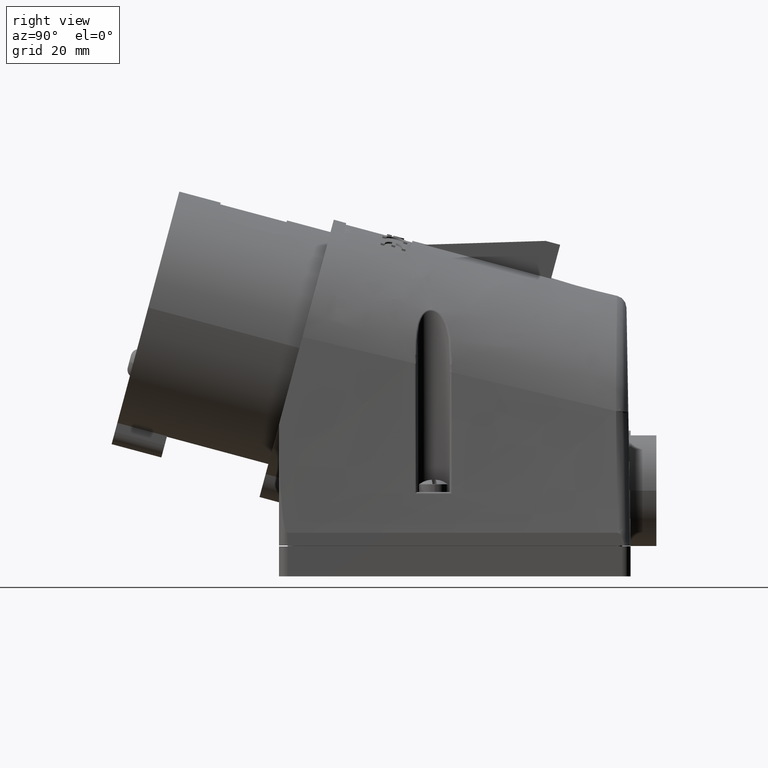
[diagram: clean part render]
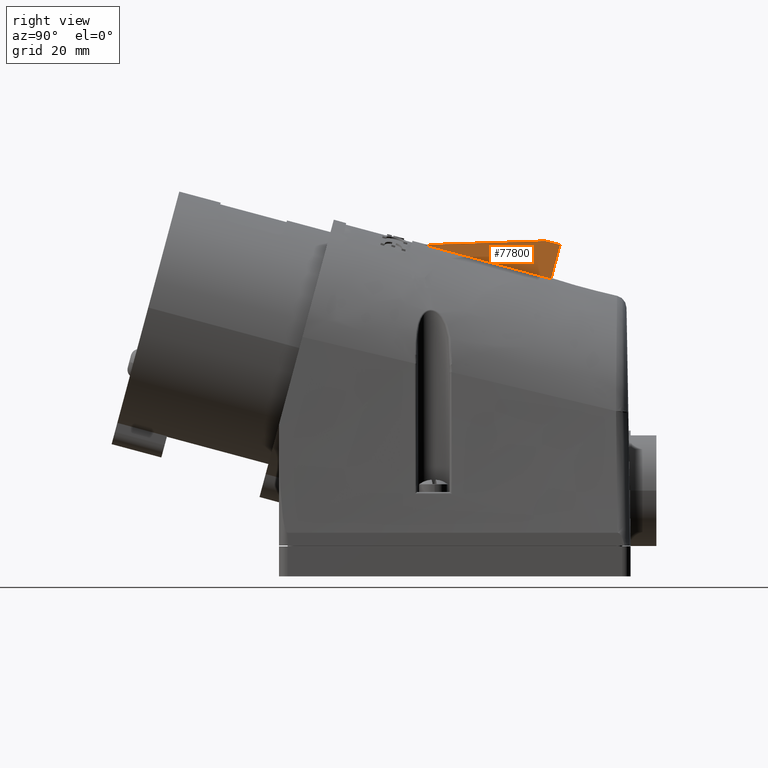
[diagram: same view with one face highlighted and labeled with its STEP entity id]
A machine part, right view. The second image highlights one B-rep face of the part: STEP entity #77800.
In plain terms, the highlighted planar face has unit normal (1, -0, 0).
Its self-contained STEP definition (entity closure, byte-faithful):
#16140=CARTESIAN_POINT('',(13.1169484670929,75.1429508882732,
48.6516298899985));
#16150=CARTESIAN_POINT('',(13.1255902858311,75.1686275442325,
48.7474564746067));
#16160=CARTESIAN_POINT('',(13.1346714922423,75.1943376136099,
48.8434077597894));
#16170=CARTESIAN_POINT('',(13.144194869173,75.2200797960281,
48.9394788924718));
#16180=CARTESIAN_POINT('',(13.4138630340355,75.9173113464933,
51.5415824634482));
#16190=CARTESIAN_POINT('',(13.9777471839827,76.6134706082093,
54.1396841983319));
#16200=CARTESIAN_POINT('',(14.8948732548482,77.3071916647905,
56.7286864277732));
#16210=CARTESIAN_POINT('',(17.4307264761774,78.6475219397489,
61.7308671128408));
#16220=CARTESIAN_POINT('',(19.0518543244929,79.2927031307398,
64.1387160977066));
#16230=CARTESIAN_POINT('',(21.0058593842889,79.8830294883928,
66.3418440575144));
#16240=CARTESIAN_POINT('',(25.4377697239386,80.9190072738474,
70.2081657883436));
#16250=CARTESIAN_POINT('',(27.9028753708101,81.3617108755464,
71.8603581225782));
#16260=CARTESIAN_POINT('',(30.5424872648712,81.7130698513275,
73.1716476718887));
#16270=CARTESIAN_POINT('',(35.9358888645669,82.2292732611137,
75.0981450242508));
#16280=CARTESIAN_POINT('',(38.685341708727,82.394976826614,
75.7165591496936));
#16290=CARTESIAN_POINT('',(41.4064453885423,82.4700686014787,
75.9968054687191));
#16300=CARTESIAN_POINT('',(46.5935546114578,82.4700686014787,
75.9968054687191));
#16310=CARTESIAN_POINT('',(49.314658291273,82.394976826614,
75.7165591496937));
#16320=CARTESIAN_POINT('',(52.0641111354331,82.2292732611136,
75.0981450242508));
#16330=CARTESIAN_POINT('',(57.4575127351288,81.7130698513275,
73.1716476718887));
#16340=CARTESIAN_POINT('',(60.0971246291899,81.3617108755464,
71.8603581225782));
#16350=CARTESIAN_POINT('',(62.5622302760614,80.9190072738473,
70.2081657883436));
#16360=CARTESIAN_POINT('',(66.9941406157111,79.8830294883928,
66.3418440575144));
#16370=CARTESIAN_POINT('',(68.9481456755071,79.2927031307398,
64.1387160977066));
#16380=CARTESIAN_POINT('',(70.5692735238226,78.6475219397489,
61.7308671128408));
#16390=CARTESIAN_POINT('',(73.1051267451518,77.3071916647905,
56.7286864277732));
#16400=CARTESIAN_POINT('',(74.0222528160173,76.6134706082094,
54.139684198332));
#16410=CARTESIAN_POINT('',(74.5861369659645,75.9173113464933,
51.5415824634482));
#16420=CARTESIAN_POINT('',(74.855805130827,75.2200797960281,
48.9394788924718));
#16430=CARTESIAN_POINT('',(74.8653285077577,75.1943376136099,
48.8434077597894));
#16440=CARTESIAN_POINT('',(74.8744097141689,75.1686275442325,
48.7474564746067));
#16450=CARTESIAN_POINT('',(74.883051532907,75.1429508882733,
48.6516298899985));
#16460=CARTESIAN_POINT('',(13.2117672415879,99.9920957734321,
42.7809359734625));
#16470=CARTESIAN_POINT('',(13.2230932529138,100.009213544072,
42.8802714185382));
#16480=CARTESIAN_POINT('',(13.2348664826904,100.026353590323,
42.9796706405484));
#16490=CARTESIAN_POINT('',(13.247088786149,100.043515045269,
43.0791295990613));
#16500=CARTESIAN_POINT('',(13.5898815520379,100.508336078912,
45.7709763548851));
#16510=CARTESIAN_POINT('',(14.2258349758504,100.97244225339,
48.4010711526822));
#16520=CARTESIAN_POINT('',(15.1956289319528,101.434922957777,
50.9880419161617));
#16530=CARTESIAN_POINT('',(17.7902458771859,102.328476474416,
55.9439237993924));
#16540=CARTESIAN_POINT('',(19.4120243256831,102.75859726841,
58.300952741978));
#16550=CARTESIAN_POINT('',(21.3358932423566,103.152148173512,
60.4518553116941));
#16560=CARTESIAN_POINT('',(25.6755822296065,103.842800030481,
64.2326237551146));
#16570=CARTESIAN_POINT('',(28.0757526496612,104.137935764948,
65.8489731813223));
#16580=CARTESIAN_POINT('',(30.6445893380001,104.372175082135,
67.1442207006227));
#16590=CARTESIAN_POINT('',(35.9392451195615,104.716310688659,
69.0687725899843));
#16600=CARTESIAN_POINT('',(38.6534432163255,104.826779732326,
69.6969250516432));
#16610=CARTESIAN_POINT('',(41.3669154613479,104.876840915569,
69.9929289221706));
#16620=CARTESIAN_POINT('',(46.6330845386521,104.876840915569,
69.9929289221706));
#16630=CARTESIAN_POINT('',(49.3465567836745,104.826779732326,
69.6969250516432));
#16640=CARTESIAN_POINT('',(52.0607548804385,104.716310688659,
69.0687725899843));
#16650=CARTESIAN_POINT('',(57.3554106619998,104.372175082135,
67.1442207006227));
#16660=CARTESIAN_POINT('',(59.9242473503388,104.137935764948,
65.8489731813223));
#16670=CARTESIAN_POINT('',(62.3244177703935,103.842800030481,
64.2326237551146));
#16680=CARTESIAN_POINT('',(66.6641067576434,103.152148173512,
60.451855311694));
#16690=CARTESIAN_POINT('',(68.5879756743169,102.75859726841,
58.300952741978));
#16700=CARTESIAN_POINT('',(70.2097541228141,102.328476474416,
55.9439237993924));
#16710=CARTESIAN_POINT('',(72.8043710680472,101.434922957777,
50.9880419161617));
#16720=CARTESIAN_POINT('',(73.7741650241496,100.972442253389,
48.4010711526822));
#16730=CARTESIAN_POINT('',(74.4101184479621,100.508336078912,
45.7709763548851));
#16740=CARTESIAN_POINT('',(74.752911213851,100.043515045269,
43.0791295990613));
#16750=CARTESIAN_POINT('',(74.7651335173096,100.026353590323,
42.9796706405485));
#16760=CARTESIAN_POINT('',(74.7769067470863,100.009213544072,
42.8802714185383));
#16770=CARTESIAN_POINT('',(74.7882327584121,99.9920957734321,
42.7809359734625));
#16780=CARTESIAN_POINT('',(13.3065860160829,124.841240658591,
36.9102420569265));
#16790=CARTESIAN_POINT('',(13.3205962199964,124.849799543911,
37.0130863624698));
#16800=CARTESIAN_POINT('',(13.3350614731386,124.858369567036,
37.1159335213074));
#16810=CARTESIAN_POINT('',(13.349982703125,124.866950294509,
37.2187803056508));
#16820=CARTESIAN_POINT('',(13.7659000700403,125.099360811331,
40.000370246322));
#16830=CARTESIAN_POINT('',(14.4739227677181,125.33141389857,
42.6624581070325));
#16840=CARTESIAN_POINT('',(15.4963846090574,125.562654250763,
45.2473974045502));
#16850=CARTESIAN_POINT('',(18.1497652781943,126.009431009083,
50.156980485944));
#16860=CARTESIAN_POINT('',(19.7721943268732,126.22449140608,
52.4631893862493));
#16870=CARTESIAN_POINT('',(21.6659271004244,126.421266858631,
54.5618665658737));
#16880=CARTESIAN_POINT('',(25.9133947352745,126.766592787116,
58.2570817218857));
#16890=CARTESIAN_POINT('',(28.2486299285123,126.914160654349,
59.8375882400664));
#16900=CARTESIAN_POINT('',(30.7466914111291,127.031280312942,
61.1167937293566));
#16910=CARTESIAN_POINT('',(35.942601374556,127.203348116204,
63.0394001557178));
#16920=CARTESIAN_POINT('',(38.621544723924,127.258582638038,
63.6772909535929));
#16930=CARTESIAN_POINT('',(41.3273855341536,127.283613229659,
63.989052375622));
#16940=CARTESIAN_POINT('',(46.6726144658464,127.283613229659,
63.989052375622));
#16950=CARTESIAN_POINT('',(49.378455276076,127.258582638038,
63.6772909535929));
#16960=CARTESIAN_POINT('',(52.057398625444,127.203348116204,
63.0394001557178));
#16970=CARTESIAN_POINT('',(57.2533085888709,127.031280312942,
61.1167937293566));
#16980=CARTESIAN_POINT('',(59.7513700714877,126.914160654349,
59.8375882400664));
#16990=CARTESIAN_POINT('',(62.0866052647255,126.766592787116,
58.2570817218857));
#17000=CARTESIAN_POINT('',(66.3340728995756,126.421266858631,
54.5618665658737));
#17010=CARTESIAN_POINT('',(68.2278056731268,126.22449140608,
52.4631893862493));
#17020=CARTESIAN_POINT('',(69.8502347218057,126.009431009083,
50.156980485944));
#17030=CARTESIAN_POINT('',(72.5036153909426,125.562654250763,
45.2473974045502));
#17040=CARTESIAN_POINT('',(73.5260772322819,125.33141389857,
42.6624581070325));
#17050=CARTESIAN_POINT('',(74.2340999299597,125.099360811331,
40.000370246322));
#17060=CARTESIAN_POINT('',(74.650017296875,124.866950294509,
37.2187803056508));
#17070=CARTESIAN_POINT('',(74.6649385268614,124.858369567036,
37.1159335213075));
#17080=CARTESIAN_POINT('',(74.6794037800036,124.849799543911,
37.0130863624698));
#17090=CARTESIAN_POINT('',(74.6934139839171,124.841240658591,
36.9102420569265));
#17100=CARTESIAN_POINT('',(13.527601747075,182.762806831271,
23.2260775620235));
#17110=CARTESIAN_POINT('',(13.5478686104957,182.751415571638,
23.3371007684785));
#17120=CARTESIAN_POINT('',(13.5686087761238,182.740009488388,
23.4479848196132));
#17130=CARTESIAN_POINT('',(13.5898210093699,182.728589158423,
23.5587283818508));
#17140=CARTESIAN_POINT('',(14.1761865521389,182.419267507336,
26.5495032197774));
#17150=CARTESIAN_POINT('',(15.0521975341018,182.110421569269,
29.2861646048151));
#17160=CARTESIAN_POINT('',(16.197424420839,181.802657322983,
31.8663687015573));
#17170=CARTESIAN_POINT('',(18.9877790960585,181.208029651049,
36.6680326120217));
#17180=CARTESIAN_POINT('',(20.6117246468806,180.921799759251,
38.855783655711));
#17190=CARTESIAN_POINT('',(22.4352122423334,180.659905810953,
40.8327272142362));
#17200=CARTESIAN_POINT('',(26.4677185499327,180.200301883287,
44.3285238220112));
#17210=CARTESIAN_POINT('',(28.6515944084975,180.003899685297,
45.8254831043133));
#17220=CARTESIAN_POINT('',(30.9846839864244,179.848021858999,
47.0672957775903));
#17230=CARTESIAN_POINT('',(35.9504245631066,179.619012011545,
48.9853674698816));
#17240=CARTESIAN_POINT('',(38.5471916366455,179.545498843018,
49.6459576277612));
#17250=CARTESIAN_POINT('',(41.2352441222713,179.512184929199,
49.9944487668994));
#17260=CARTESIAN_POINT('',(46.7647558777288,179.512184929199,
49.9944487668994));
#17270=CARTESIAN_POINT('',(49.4528083633545,179.545498843018,
49.6459576277612));
#17280=CARTESIAN_POINT('',(52.0495754368934,179.619012011545,
48.9853674698816));
#17290=CARTESIAN_POINT('',(57.0153160135756,179.848021858999,
47.0672957775902));
#17300=CARTESIAN_POINT('',(59.3484055915024,180.003899685297,
45.8254831043132));
#17310=CARTESIAN_POINT('',(61.5322814500672,180.200301883287,
44.3285238220111));
#17320=CARTESIAN_POINT('',(65.5647877576666,180.659905810953,
40.8327272142362));
#17330=CARTESIAN_POINT('',(67.3882753531194,180.921799759251,
38.855783655711));
#17340=CARTESIAN_POINT('',(69.0122209039414,181.208029651049,
36.6680326120217));
#17350=CARTESIAN_POINT('',(71.802575579161,181.802657322983,
31.8663687015573));
#17360=CARTESIAN_POINT('',(72.9478024658982,182.110421569269,
29.2861646048151));
#17370=CARTESIAN_POINT('',(73.823813447861,182.419267507336,
26.5495032197774));
#17380=CARTESIAN_POINT('',(74.4101789906301,182.728589158423,
23.5587283818508));
#17390=CARTESIAN_POINT('',(74.4313912238762,182.740009488388,
23.4479848196132));
#17400=CARTESIAN_POINT('',(74.4521313895043,182.751415571638,
23.3371007684785));
#17410=CARTESIAN_POINT('',(74.4723982529251,182.762806831271,
23.2260775620235));
#17420=CARTESIAN_POINT('',(13.6537987035721,215.835228118793,
15.4126069836565));
#17430=CARTESIAN_POINT('',(13.6777076319973,215.830176928829,
15.5241122057522));
#17440=CARTESIAN_POINT('',(13.7021041511912,215.825089607286,
15.6354007520057));
#17450=CARTESIAN_POINT('',(13.7269858068195,215.819966841698,
15.7464723473001));
#17460=CARTESIAN_POINT('',(14.4142628360311,215.680198526621,
18.7443900207593));
#17470=CARTESIAN_POINT('',(15.392405095868,215.514348010591,
21.4166941343723));
#17480=CARTESIAN_POINT('',(16.6153876704053,215.333212998486,
23.8885361373405));
#17490=CARTESIAN_POINT('',(19.5002156814026,214.961388845002,
28.4196836695025));
#17500=CARTESIAN_POINT('',(21.1312106428424,214.767493034538,
30.4357700481955));
#17510=CARTESIAN_POINT('',(22.916406256603,214.586608647335,
32.2450406502033));
#17520=CARTESIAN_POINT('',(26.8211511099118,214.269219897715,
35.4477834583587));
#17530=CARTESIAN_POINT('',(28.910640572705,214.132697477222,
36.8177857310308));
#17540=CARTESIAN_POINT('',(31.1387097261862,214.030339010474,
37.9746410482652));
#17550=CARTESIAN_POINT('',(35.9555396438589,213.890249599161,
39.7963377515492));
#17560=CARTESIAN_POINT('',(38.4984089783254,213.850661697704,
40.4400757409041));
#17570=CARTESIAN_POINT('',(41.1746849987533,213.838949194105,
40.7966200033444));
#17580=CARTESIAN_POINT('',(46.8253150012467,213.838949194105,
40.7966200033444));
#17590=CARTESIAN_POINT('',(49.5015910216746,213.850661697704,
40.4400757409041));
#17600=CARTESIAN_POINT('',(52.0444603561411,213.890249599161,
39.7963377515492));
#17610=CARTESIAN_POINT('',(56.8612902738138,214.030339010474,
37.9746410482652));
#17620=CARTESIAN_POINT('',(59.0893594272949,214.132697477222,
36.8177857310308));
#17630=CARTESIAN_POINT('',(61.1788488900881,214.269219897715,
35.4477834583587));
#17640=CARTESIAN_POINT('',(65.083593743397,214.586608647335,
32.2450406502034));
#17650=CARTESIAN_POINT('',(66.8687893571576,214.767493034538,
30.4357700481955));
#17660=CARTESIAN_POINT('',(68.4997843185974,214.961388845002,
28.4196836695025));
#17670=CARTESIAN_POINT('',(71.3846123295947,215.333212998486,
23.8885361373407));
#17680=CARTESIAN_POINT('',(72.607594904132,215.514348010591,
21.4166941343724));
#17690=CARTESIAN_POINT('',(73.5857371639689,215.680198526621,
18.7443900207593));
#17700=CARTESIAN_POINT('',(74.2730141931805,215.819966841698,
15.7464723473001));
#17710=CARTESIAN_POINT('',(74.2978958488088,215.825089607286,
15.6354007520057));
#17720=CARTESIAN_POINT('',(74.3222923680026,215.830176928829,
15.5241122057522));
#17730=CARTESIAN_POINT('',(74.3462012964279,215.835228118793,
15.4126069836565));
#17740=CARTESIAN_POINT('',(13.7799956600693,248.907649406315,
7.59913640528944));
#17750=CARTESIAN_POINT('',(13.8075466534989,248.908938286019,
7.7111236430258));
#17760=CARTESIAN_POINT('',(13.8355995262585,248.910169726184,
7.82281668439821));
#17770=CARTESIAN_POINT('',(13.864150604269,248.911344524972,
7.93421631274938));
#17780=CARTESIAN_POINT('',(14.6523391199232,248.941129545907,
10.9392768217412));
#17790=CARTESIAN_POINT('',(15.7326126576342,248.918274451914,
13.5472236639295));
#17800=CARTESIAN_POINT('',(17.0333509199716,248.863768673988,
15.9107035731238));
#17810=CARTESIAN_POINT('',(20.0126522667467,248.714748038954,
20.1713347269832));
#17820=CARTESIAN_POINT('',(21.6506966388041,248.613186309824,
22.01575644068));
#17830=CARTESIAN_POINT('',(23.3976002708726,248.513311483718,
23.6573540861704));
#17840=CARTESIAN_POINT('',(27.1745836698909,248.338137912143,
26.5670430947063));
#17850=CARTESIAN_POINT('',(29.1696867369126,248.261495269147,
27.8100883577484));
#17860=CARTESIAN_POINT('',(31.2927354659481,248.21265616195,
28.8819863189402));
#17870=CARTESIAN_POINT('',(35.9606547246112,248.161487186776,
30.6073080332168));
#17880=CARTESIAN_POINT('',(38.4496263200053,248.155824552391,
31.2341938540471));
#17890=CARTESIAN_POINT('',(41.1141258752353,248.16571345901,
31.5987912397894));
#17900=CARTESIAN_POINT('',(46.8858741247647,248.16571345901,
31.5987912397894));
#17910=CARTESIAN_POINT('',(49.5503736799947,248.155824552391,
31.2341938540471));
#17920=CARTESIAN_POINT('',(52.0393452753887,248.161487186776,
30.6073080332168));
#17930=CARTESIAN_POINT('',(56.7072645340519,248.21265616195,
28.8819863189402));
#17940=CARTESIAN_POINT('',(58.8303132630874,248.261495269147,
27.8100883577483));
#17950=CARTESIAN_POINT('',(60.8254163301091,248.338137912143,
26.5670430947062));
#17960=CARTESIAN_POINT('',(64.6023997291273,248.513311483718,
23.6573540861705));
#17970=CARTESIAN_POINT('',(66.3493033611959,248.613186309824,
22.01575644068));
#17980=CARTESIAN_POINT('',(67.9873477332533,248.714748038954,
20.1713347269833));
#17990=CARTESIAN_POINT('',(70.9666490800284,248.863768673988,
15.9107035731239));
#18000=CARTESIAN_POINT('',(72.2673873423658,248.918274451914,
13.5472236639297));
#18010=CARTESIAN_POINT('',(73.3476608800767,248.941129545907,
10.9392768217411));
#18020=CARTESIAN_POINT('',(74.135849395731,248.911344524972,
7.93421631274934));
#18030=CARTESIAN_POINT('',(74.1644004737415,248.910169726184,
7.8228166843982));
#18040=CARTESIAN_POINT('',(74.192453346501,248.908938286019,
7.71112364302587));
#18050=CARTESIAN_POINT('',(74.2200043399308,248.907649406315,
7.59913640528945));
#18060=(BOUNDED_SURFACE() B_SPLINE_SURFACE(4,3,((#16140,#16460,#16780,
#17100,#17420,#17740),(#16150,#16470,#16790,#17110,#17430,#17750),(
#16160,#16480,#16800,#17120,#17440,#17760),(#16170,#16490,#16810,#17130,
#17450,#17770),(#16180,#16500,#16820,#17140,#17460,#17780),(#16190,
#16510,#16830,#17150,#17470,#17790),(#16200,#16520,#16840,#17160,#17480,
#17800),(#16210,#16530,#16850,#17170,#17490,#17810),(#16220,#16540,
#16860,#17180,#17500,#17820),(#16230,#16550,#16870,#17190,#17510,#17830)
,(#16240,#16560,#16880,#17200,#17520,#17840),(#16250,#16570,#16890,
#17210,#17530,#17850),(#16260,#16580,#16900,#17220,#17540,#17860),(
#16270,#16590,#16910,#17230,#17550,#17870),(#16280,#16600,#16920,#17240,
#17560,#17880),(#16290,#16610,#16930,#17250,#17570,#17890),(#16300,
#16620,#16940,#17260,#17580,#17900),(#16310,#16630,#16950,#17270,#17590,
#17910),(#16320,#16640,#16960,#17280,#17600,#17920),(#16330,#16650,
#16970,#17290,#17610,#17930),(#16340,#16660,#16980,#17300,#17620,#17940)
,(#16350,#16670,#16990,#17310,#17630,#17950),(#16360,#16680,#17000,
#17320,#17640,#17960),(#16370,#16690,#17010,#17330,#17650,#17970),(
#16380,#16700,#17020,#17340,#17660,#17980),(#16390,#16710,#17030,#17350,
#17670,#17990),(#16400,#16720,#17040,#17360,#17680,#18000),(#16410,
#16730,#17050,#17370,#17690,#18010),(#16420,#16740,#17060,#17380,#17700,
#18020),(#16430,#16750,#17070,#17390,#17710,#18030),(#16440,#16760,
#17080,#17400,#17720,#18040),(#16450,#16770,#17090,#17410,#17730,#18050)
),.UNSPECIFIED.,.F.,.F.,.F.) B_SPLINE_SURFACE_WITH_KNOTS((5,3,3,3,3,3,3,
3,3,3,5),(4,2,4),(117.441017741438,117.839348378172,128.213566824003,
138.587785269834,148.962003715665,159.336222161496,169.710440607327,
180.084659053158,190.458877498989,200.83309594482,201.231426581553),(1.,
77.1115129853379,178.410452402169),.UNSPECIFIED.) 
GEOMETRIC_REPRESENTATION_ITEM() RATIONAL_B_SPLINE_SURFACE(((1.,1.,1.,1.,
1.,1.),(1.,1.,1.,1.,1.,1.),(0.999995836262218,0.999995836262218,1.,1.,1.
,1.),(0.999987627550439,0.999987627550439,1.,1.,1.,1.),(
0.999659386739778,0.999659386739778,1.,1.,1.,1.),(0.996678593431376,
0.996678593431376,1.,1.,1.,1.),(0.9930912800971,0.9930912800971,1.,1.,1.
,1.),(0.986741835070642,0.986741835070643,1.,1.,1.,1.),(
0.983979703378461,0.983979703378462,1.,1.,1.,1.),(0.98264927335425,
0.98264927335425,1.,1.,1.,1.),(0.982811920725012,0.982811920725012,1.,1.
,1.,1.),(0.984304998119985,0.984304998119985,1.,1.,1.,1.),(
0.987189881266172,0.987189881266173,1.,1.,1.,1.),(0.99362524553362,
0.99362524553362,1.,1.,1.,1.),(0.997175726654881,0.997175726654881,1.,1.
,1.,1.),(1.,1.,1.,1.,1.,1.),(1.,1.,1.,1.,1.,1.),(0.997175726654881,
0.997175726654881,1.,1.,1.,1.),(0.99362524553362,0.993625245533621,1.,1.
,1.,1.),(0.987189881266173,0.987189881266173,1.,1.,1.,1.),(
0.984304998119985,0.984304998119985,1.,1.,1.,1.),(0.982811920725012,
0.982811920725012,1.,1.,1.,1.),(0.98264927335425,0.98264927335425,1.,1.,
1.,1.),(0.983979703378462,0.983979703378462,1.,1.,1.,1.),(
0.986741835070642,0.986741835070642,1.,1.,1.,1.),(0.9930912800971,
0.9930912800971,1.,1.,1.,1.),(0.996678593431376,0.996678593431376,1.,1.,
1.,1.),(0.999659386739778,0.999659386739778,1.,1.,1.,1.),(
0.999987627550439,0.999987627550439,1.,1.,1.,1.),(0.999995836262219,
0.999995836262219,1.,1.,1.,1.),(1.,1.,1.,1.,1.,1.),(1.,1.,1.,1.,1.,1.)))
 REPRESENTATION_ITEM('') SURFACE());
#25370=CARTESIAN_POINT('',(47.5,103.517864546524,70.1518526446542));
#25380=VERTEX_POINT('',#25370);
#25430=CARTESIAN_POINT('',(47.5,-1.34080498250119,4.03099169566146));
#25440=DIRECTION('',(1.,-0.,0.));
#25450=DIRECTION('',(0.,0.,-1.));
#25460=AXIS2_PLACEMENT_3D('',#25430,#25440,#25450);
#25470=PLANE('',#25460);
#25480=CARTESIAN_POINT('',(47.5,103.517864546533,70.1518526446517));
#25490=CARTESIAN_POINT('',(47.5,105.985530964766,69.4906401900985));
#25500=CARTESIAN_POINT('',(47.5000000000003,108.453197285742,
68.829427372639));
#25510=CARTESIAN_POINT('',(47.5000000000003,110.920863630634,
68.1682146443843));
#25520=CARTESIAN_POINT('',(47.5000000000003,113.388529975524,
67.5070019161302));
#25530=CARTESIAN_POINT('',(47.5,115.856196344334,66.8457892770676));
#25540=CARTESIAN_POINT('',(47.5,118.323862853148,66.1845771605633));
#25550=CARTESIAN_POINT('',(47.5,120.791529361959,65.5233650440599));
#25560=CARTESIAN_POINT('',(47.4999999999995,123.259196010776,
64.8621534500942));
#25570=CARTESIAN_POINT('',(47.4999999999995,125.72686291077,
64.2009427934776));
#25580=CARTESIAN_POINT('',(47.4999999999995,128.194529810763,
63.5397321368613));
#25590=CARTESIAN_POINT('',(47.5,130.662196961914,62.8785224175706));
#25600=CARTESIAN_POINT('',(47.5,133.129864470486,62.2173140322172));
#25610=B_SPLINE_CURVE_WITH_KNOTS('',3,(#25480,#25490,#25500,#25510,
#25520,#25530,#25540,#25550,#25560,#25570,#25580,#25590,#25600),
.UNSPECIFIED.,.F.,.F.,(4,3,3,3,4),(0.,7.66415130039177,15.3283026008146,
22.9924539012152,30.6566052016303),.UNSPECIFIED.);
#25620=SURFACE_CURVE('',#25610,(#25470,#18060),.CURVE_3D.);
#25630=CARTESIAN_POINT('',(47.5,133.129864470486,62.2173140322172));
#25640=VERTEX_POINT('',#25630);
#25650=EDGE_CURVE('',#25380,#25640,#25620,.T.);
#77430=CARTESIAN_POINT('',(47.5,131.870986450463,71.0420788690076));
#77440=DIRECTION('',(-0.,-0.999507452586098,-0.0313823553107224));
#77450=VECTOR('',#77440,1.);
#77460=LINE('',#77430,#77450);
#77470=CARTESIAN_POINT('',(47.5,131.870986450463,71.0420788690076));
#77480=VERTEX_POINT('',#77470);
#77490=EDGE_CURVE('',#77480,#25380,#77460,.T.);
#77620=ORIENTED_EDGE('',*,*,#77490,.T.);
#77630=CARTESIAN_POINT('',(47.5,135.251726842475,70.1362122111488));
#77640=DIRECTION('',(-0.,-0.965925826289069,0.258819045102517));
#77650=VECTOR('',#77640,1.);
#77660=LINE('',#77630,#77650);
#77670=CARTESIAN_POINT('',(47.5,135.251726842475,70.1362122111488));
#77680=VERTEX_POINT('',#77670);
#77690=EDGE_CURVE('',#77680,#77480,#77660,.T.);
#77700=ORIENTED_EDGE('',*,*,#77690,.T.);
#77710=CARTESIAN_POINT('',(47.5,132.66353639145,60.4769539482586));
#77720=DIRECTION('',(0.,0.25881904510251,0.965925826289071));
#77730=VECTOR('',#77720,1.);
#77740=LINE('',#77710,#77730);
#77750=EDGE_CURVE('',#25640,#77680,#77740,.T.);
#77760=ORIENTED_EDGE('',*,*,#77750,.T.);
#77770=ORIENTED_EDGE('',*,*,#25650,.T.);
#77780=EDGE_LOOP('',(#77770,#77760,#77700,#77620));
#77790=FACE_OUTER_BOUND('',#77780,.T.);
#77800=ADVANCED_FACE('',(#77790),#25470,.T.);